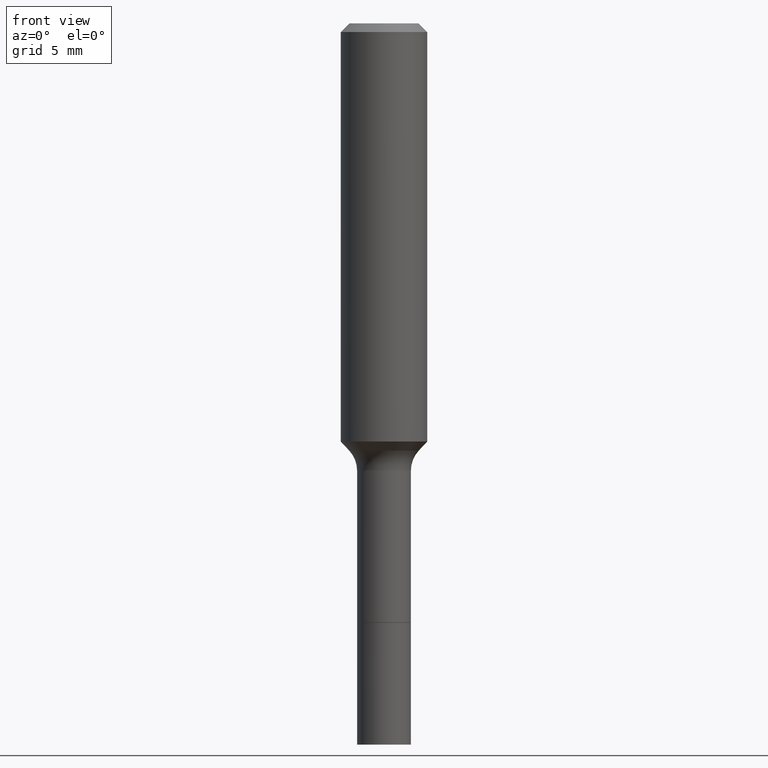
[diagram: clean part render]
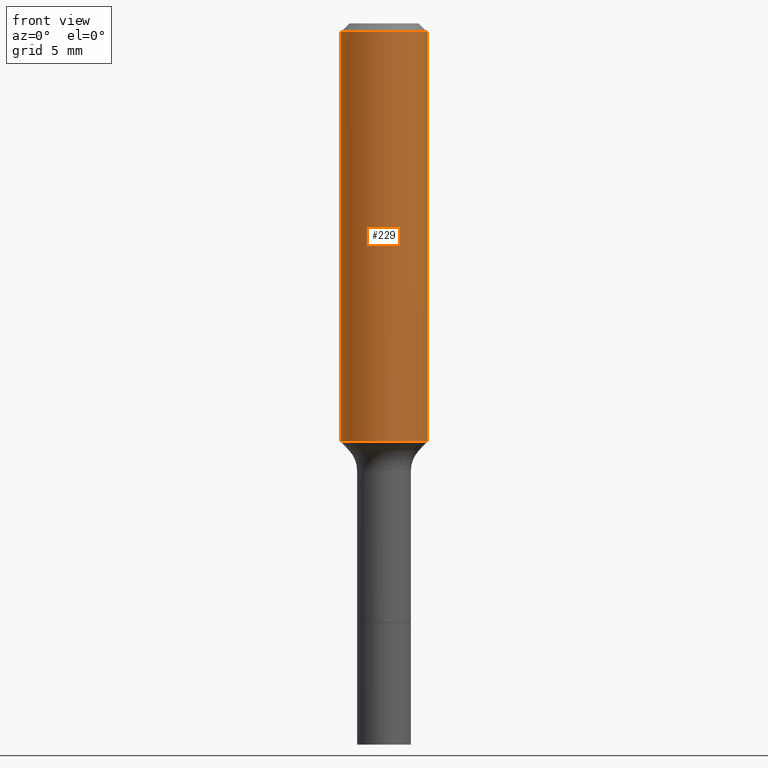
[diagram: same view with one face highlighted and labeled with its STEP entity id]
A machine part, front view. The second image highlights one B-rep face of the part: STEP entity #229.
In plain terms, the highlighted cylindrical surface (partial cylindrical patch) has radius 2.9997 mm, axis along (-0, 0, 1).
Its self-contained STEP definition (entity closure, byte-faithful):
#2 = CARTESIAN_POINT ( 'NONE',  ( -0.1181000000000000660, 8.391509709326787887E-16, -5.809262341591047287E-30 ) ) ;
#11 = ORIENTED_EDGE ( 'NONE', *, *, #187, .F. ) ;
#12 = DIRECTION ( 'NONE',  ( 1.000000000000000000, -6.982962677686266711E-15, 4.876176775795936353E-29 ) ) ;
#35 = FACE_OUTER_BOUND ( 'NONE', #94, .T. ) ;
#39 = LINE ( 'NONE', #2, #408 ) ;
#54 = AXIS2_PLACEMENT_3D ( 'NONE', #165, #133, #255 ) ;
#72 = CARTESIAN_POINT ( 'NONE',  ( 0.1180999999999999966, -9.071566814582237199E-16, -0.02362000000000014435 ) ) ;
#77 = CARTESIAN_POINT ( 'NONE',  ( 5.776197320209328408E-31, -8.246878922347560526E-17, -0.02362000000000014435 ) ) ;
#91 = EDGE_CURVE ( 'NONE', #425, #138, #296, .T. ) ;
#94 = EDGE_LOOP ( 'NONE', ( #11, #351, #423, #269 ) ) ;
#117 = LINE ( 'NONE', #513, #436 ) ;
#122 = DIRECTION ( 'NONE',  ( -2.445468806185136877E-29, 3.491481338843145188E-15, 1.000000000000000000 ) ) ;
#131 = AXIS2_PLACEMENT_3D ( 'NONE', #77, #397, #319 ) ;
#133 = DIRECTION ( 'NONE',  ( -2.445468806185136597E-29, 3.491481338843145583E-15, 1.000000000000000000 ) ) ;
#138 = VERTEX_POINT ( 'NONE', #72 ) ;
#144 = VERTEX_POINT ( 'NONE', #160 ) ;
#158 = DIRECTION ( 'NONE',  ( -2.445468806185136597E-29, 3.491481338843145583E-15, 1.000000000000000000 ) ) ;
#160 = CARTESIAN_POINT ( 'NONE',  ( -0.1181000000000001354, -3.145186189004920235E-15, -1.141159517483703700 ) ) ;
#165 = CARTESIAN_POINT ( 'NONE',  ( 2.790670002887679665E-29, -3.984337159937599615E-15, -1.141159517483703700 ) ) ;
#170 = EDGE_CURVE ( 'NONE', #308, #138, #117, .T. ) ;
#187 = EDGE_CURVE ( 'NONE', #144, #425, #39, .T. ) ;
#197 = CYLINDRICAL_SURFACE ( 'NONE', #283, 0.1181000000000000660 ) ;
#229 = ADVANCED_FACE ( 'NONE', ( #35 ), #197, .T. ) ;
#255 = DIRECTION ( 'NONE',  ( 1.000000000000000000, -6.982962677686269077E-15, 0.000000000000000000 ) ) ;
#269 = ORIENTED_EDGE ( 'NONE', *, *, #91, .F. ) ;
#283 = AXIS2_PLACEMENT_3D ( 'NONE', #359, #158, #12 ) ;
#291 = CIRCLE ( 'NONE', #54, 0.1181000000000001354 ) ;
#296 = CIRCLE ( 'NONE', #131, 0.1180999999999999966 ) ;
#308 = VERTEX_POINT ( 'NONE', #452 ) ;
#319 = DIRECTION ( 'NONE',  ( 1.000000000000000000, -6.982962677686266711E-15, 0.000000000000000000 ) ) ;
#329 = EDGE_CURVE ( 'NONE', #144, #308, #291, .T. ) ;
#351 = ORIENTED_EDGE ( 'NONE', *, *, #329, .T. ) ;
#352 = CARTESIAN_POINT ( 'NONE',  ( -0.1180999999999999966, -1.194252003647858156E-15, -0.02362000000000014435 ) ) ;
#359 = CARTESIAN_POINT ( 'NONE',  ( 0.000000000000000000, 0.000000000000000000, 0.000000000000000000 ) ) ;
#367 = DIRECTION ( 'NONE',  ( -2.445468806185136877E-29, 3.491481338843145188E-15, 1.000000000000000000 ) ) ;
#397 = DIRECTION ( 'NONE',  ( -2.445468806185136597E-29, 3.491481338843145583E-15, 1.000000000000000000 ) ) ;
#408 = VECTOR ( 'NONE', #122, 39.37007874015748143 ) ;
#423 = ORIENTED_EDGE ( 'NONE', *, *, #170, .T. ) ;
#425 = VERTEX_POINT ( 'NONE', #352 ) ;
#436 = VECTOR ( 'NONE', #367, 39.37007874015748143 ) ;
#452 = CARTESIAN_POINT ( 'NONE',  ( 0.1181000000000001354, -4.809025052172348667E-15, -1.141159517483703700 ) ) ;
#513 = CARTESIAN_POINT ( 'NONE',  ( 0.1181000000000000660, -8.246878922347485584E-16, 5.758764772215003944E-30 ) ) ;